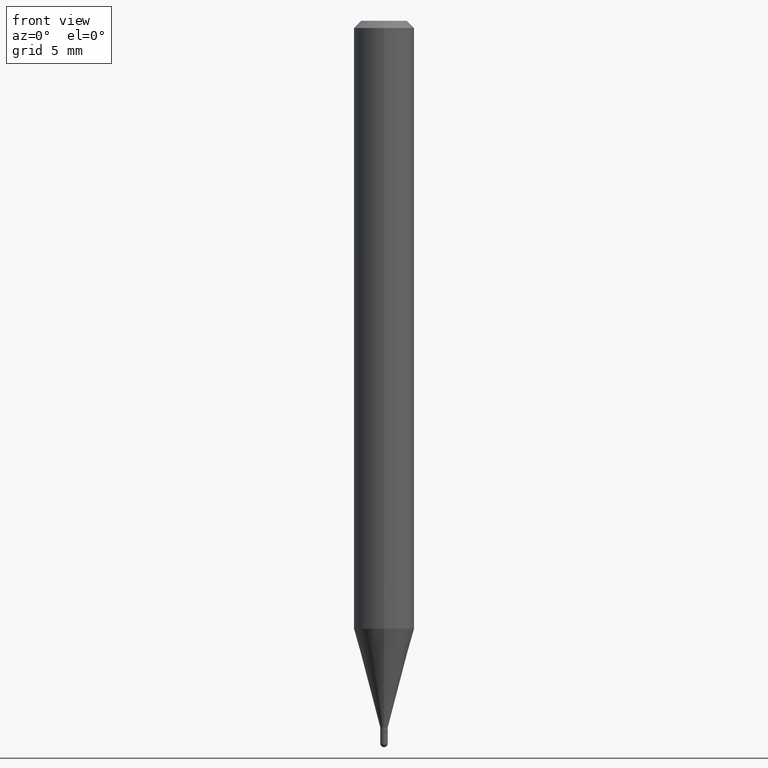
[diagram: clean part render]
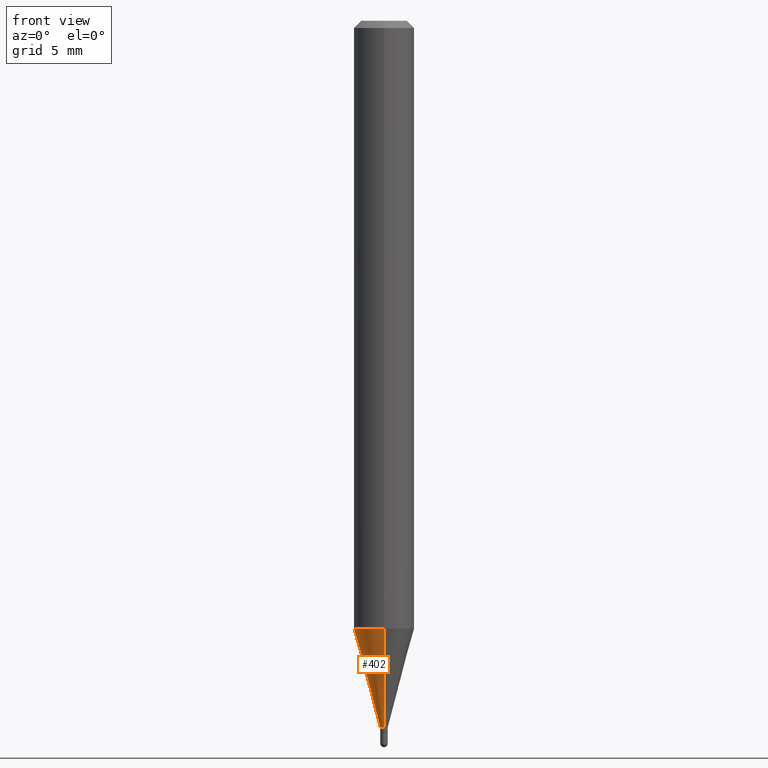
[diagram: same view with one face highlighted and labeled with its STEP entity id]
A machine part, front view. The second image highlights one B-rep face of the part: STEP entity #402.
In plain terms, the highlighted conical surface has half-angle 15 deg.
Its self-contained STEP definition (entity closure, byte-faithful):
#1 = DIRECTION ( 'NONE',  ( -2.445232611711644986E-29, 3.491819582772540088E-15, 1.000000000000000000 ) ) ;
#18 = ORIENTED_EDGE ( 'NONE', *, *, #512, .T. ) ;
#40 = VERTEX_POINT ( 'NONE', #97 ) ;
#41 = FACE_OUTER_BOUND ( 'NONE', #198, .T. ) ;
#44 = VERTEX_POINT ( 'NONE', #332 ) ;
#46 = DIRECTION ( 'NONE',  ( -6.982962677686265922E-15, -1.000000000000000000, 0.000000000000000000 ) ) ;
#56 = ORIENTED_EDGE ( 'NONE', *, *, #497, .T. ) ;
#61 = AXIS2_PLACEMENT_3D ( 'NONE', #234, #1, #46 ) ;
#63 = DIRECTION ( 'NONE',  ( -6.982962677686265922E-15, -1.000000000000000000, 0.000000000000000000 ) ) ;
#83 = DIRECTION ( 'NONE',  ( -6.982962677686265922E-15, -1.000000000000000000, 4.370956789862821150E-15 ) ) ;
#97 = CARTESIAN_POINT ( 'NONE',  ( -4.364351673553610024E-16, -0.06250000000000438538, -1.254856820825982933 ) ) ;
#118 = CONICAL_SURFACE ( 'NONE', #61, 0.007799999999999922447, 0.2617993877991502960 ) ;
#129 = CARTESIAN_POINT ( 'NONE',  ( 3.567594380487290426E-29, -5.094564771265136885E-15, -1.459000000000000297 ) ) ;
#131 = AXIS2_PLACEMENT_3D ( 'NONE', #155, #272, #83 ) ;
#155 = CARTESIAN_POINT ( 'NONE',  ( 3.068416821312490744E-29, -4.381733620535860243E-15, -1.254856820825983155 ) ) ;
#156 = EDGE_CURVE ( 'NONE', #388, #44, #455, .T. ) ;
#160 = VERTEX_POINT ( 'NONE', #170 ) ;
#170 = CARTESIAN_POINT ( 'NONE',  ( -5.446710888591665753E-17, -0.007800000000005017330, -1.459000000000000297 ) ) ;
#171 = DIRECTION ( 'NONE',  ( -2.445232611711644986E-29, 3.491819582772540088E-15, 1.000000000000000000 ) ) ;
#187 = ORIENTED_EDGE ( 'NONE', *, *, #335, .F. ) ;
#198 = EDGE_LOOP ( 'NONE', ( #393, #18, #56, #187 ) ) ;
#209 = LINE ( 'NONE', #489, #492 ) ;
#234 = CARTESIAN_POINT ( 'NONE',  ( 3.567594380487290426E-29, -5.094564771265136885E-15, -1.459000000000000297 ) ) ;
#257 = CIRCLE ( 'NONE', #131, 0.06250000000000000000 ) ;
#272 = DIRECTION ( 'NONE',  ( -2.445232611711644986E-29, 3.491819582772540088E-15, 1.000000000000000000 ) ) ;
#306 = CIRCLE ( 'NONE', #359, 0.007799999999999922447 ) ;
#307 = CARTESIAN_POINT ( 'NONE',  ( 5.542233338932293475E-17, 0.007799999999994828431, -1.459000000000000297 ) ) ;
#316 = CARTESIAN_POINT ( 'NONE',  ( 2.497557716197082045E-16, 0.007799999999994826697, -1.459000000000000297 ) ) ;
#332 = CARTESIAN_POINT ( 'NONE',  ( 4.440892098500930859E-16, 0.06249999999999560074, -1.254856820825983377 ) ) ;
#335 = EDGE_CURVE ( 'NONE', #44, #40, #257, .T. ) ;
#342 = DIRECTION ( 'NONE',  ( -1.807323732225330928E-15, -0.2588190451025182970, 0.9659258262890689783 ) ) ;
#345 = DIRECTION ( 'NONE',  ( 1.839019923739601104E-15, 0.2588190451025250693, 0.9659258262890670910 ) ) ;
#359 = AXIS2_PLACEMENT_3D ( 'NONE', #129, #171, #63 ) ;
#388 = VERTEX_POINT ( 'NONE', #316 ) ;
#393 = ORIENTED_EDGE ( 'NONE', *, *, #156, .F. ) ;
#402 = ADVANCED_FACE ( 'NONE', ( #41 ), #118, .T. ) ;
#455 = LINE ( 'NONE', #307, #490 ) ;
#489 = CARTESIAN_POINT ( 'NONE',  ( -5.446710888591665753E-17, -0.007800000000005017330, -1.459000000000000297 ) ) ;
#490 = VECTOR ( 'NONE', #345, 39.37007874015748143 ) ;
#492 = VECTOR ( 'NONE', #342, 39.37007874015748143 ) ;
#497 = EDGE_CURVE ( 'NONE', #160, #40, #209, .T. ) ;
#512 = EDGE_CURVE ( 'NONE', #388, #160, #306, .T. ) ;